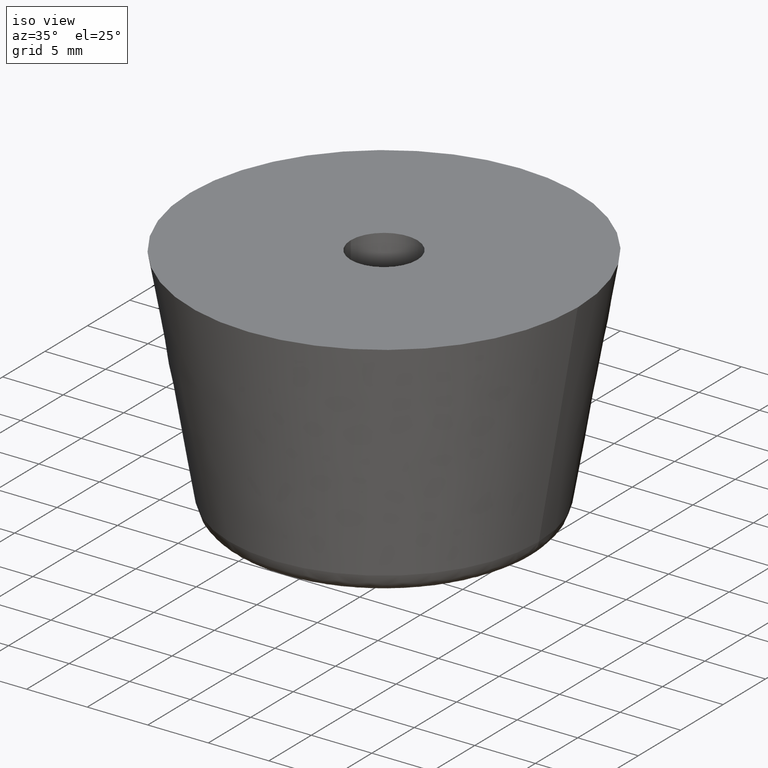
[diagram: clean part render]
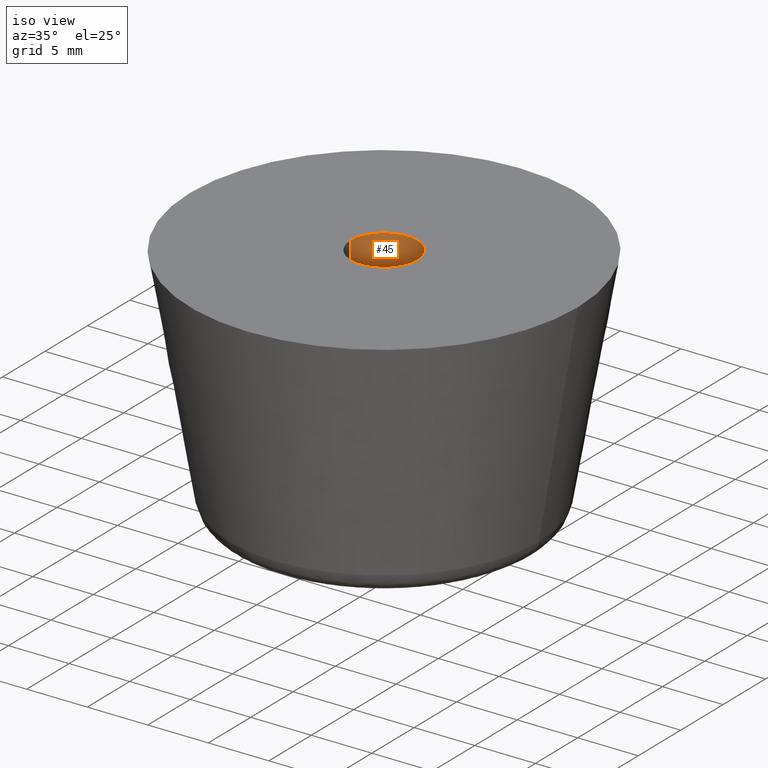
[diagram: same view with one face highlighted and labeled with its STEP entity id]
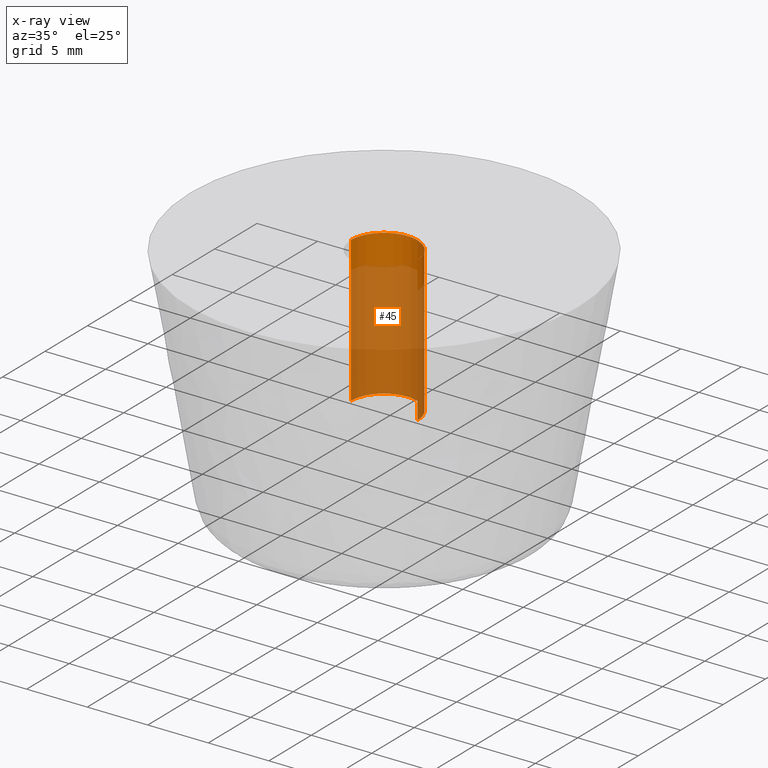
[diagram: x-ray of the same camera — body ghosted, the highlighted face saturated]
A machine part, iso view. The second image highlights one B-rep face of the part: STEP entity #45.
The next image is the same camera in x-ray: the body ghosted, the highlighted face saturated — about 80% of this face is hidden behind the body in this view.
In plain terms, the highlighted cylindrical surface (partial cylindrical patch) has radius 2.75 mm, axis along (0, -0, 1).
Its self-contained STEP definition (entity closure, byte-faithful):
#45=ADVANCED_FACE('',(#105),#104,.F.);
#104=CYLINDRICAL_SURFACE('',#207,2.75000000000E+00);
#105=FACE_OUTER_BOUND('',#208,.T.);
#204=CARTESIAN_POINT('',(-3.55271367880E-14,0.00000000000E+00,0.00000000000E+00));
#205=DIRECTION('',(0.00000000000E+00,-0.00000000000E+00,1.00000000000E+00));
#206=DIRECTION('',(1.00000000000E+00,-0.00000000000E+00,-0.00000000000E+00));
#207=AXIS2_PLACEMENT_3D('',#204,#205,#206);
#208=EDGE_LOOP('',(#296,#297,#298,#299));
#296=ORIENTED_EDGE('',*,*,#327,.T.);
#297=ORIENTED_EDGE('',*,*,#336,.T.);
#298=ORIENTED_EDGE('',*,*,#322,.F.);
#299=ORIENTED_EDGE('',*,*,#337,.F.);
#322=EDGE_CURVE('',#356,#357,#358,.T.);
#327=EDGE_CURVE('',#385,#384,#392,.T.);
#336=EDGE_CURVE('',#384,#357,#452,.T.);
#337=EDGE_CURVE('',#385,#356,#458,.T.);
#356=VERTEX_POINT('',#498);
#357=VERTEX_POINT('',#499);
#358=CIRCLE('',#503,2.75000000000E+00);
#384=VERTEX_POINT('',#518);
#385=VERTEX_POINT('',#519);
#392=CIRCLE('',#527,2.75000000000E+00);
#452=(BOUNDED_CURVE() B_SPLINE_CURVE(1,(#562,#563),.UNSPECIFIED.,.F.,.F.) B_SPLINE_CURVE_WITH_KNOTS((2,2),(8.33333343261E-02,9.16666667006E-01),.UNSPECIFIED.) CURVE() GEOMETRIC_REPRESENTATION_ITEM() RATIONAL_B_SPLINE_CURVE((1.00000000000E+00,1.00000000000E+00)) REPRESENTATION_ITEM('') );
#458=(BOUNDED_CURVE() B_SPLINE_CURVE(1,(#564,#565),.UNSPECIFIED.,.F.,.F.) B_SPLINE_CURVE_WITH_KNOTS((2,2),(8.33333333333E-02,9.16666666667E-01),.UNSPECIFIED.) CURVE() GEOMETRIC_REPRESENTATION_ITEM() RATIONAL_B_SPLINE_CURVE((7.50000000000E-01,7.50000000000E-01)) REPRESENTATION_ITEM('') );
#498=CARTESIAN_POINT('',(-2.75000000000E+00,0.00000000000E+00,0.00000000000E+00));
#499=CARTESIAN_POINT('',(2.75000000000E+00,1.48029736617E-16,0.00000000000E+00));
#500=CARTESIAN_POINT('',(-3.55271367880E-14,0.00000000000E+00,0.00000000000E+00));
#501=DIRECTION('',(-0.00000000000E+00,0.00000000000E+00,-1.00000000000E+00));
#502=DIRECTION('',(-1.00000000000E+00,-1.22460635382E-16,0.00000000000E+00));
#503=AXIS2_PLACEMENT_3D('',#500,#501,#502);
#518=CARTESIAN_POINT('',(2.75000000000E+00,1.48029736617E-16,-1.20000000000E+01));
#519=CARTESIAN_POINT('',(-2.75000000000E+00,0.00000000000E+00,-1.20000000000E+01));
#524=CARTESIAN_POINT('',(-3.55271367880E-14,0.00000000000E+00,-1.20000000000E+01));
#525=DIRECTION('',(-0.00000000000E+00,0.00000000000E+00,-1.00000000000E+00));
#526=DIRECTION('',(-1.00000000000E+00,-1.22460635382E-16,0.00000000000E+00));
#527=AXIS2_PLACEMENT_3D('',#524,#525,#526);
#562=CARTESIAN_POINT('',(2.75000000000E+00,0.00000000000E+00,-1.19999999857E+01));
#563=CARTESIAN_POINT('',(2.75000000000E+00,0.00000000000E+00,4.88765605766E-09));
#564=CARTESIAN_POINT('',(-2.75000000000E+00,0.00000000000E+00,-1.20000000000E+01));
#565=CARTESIAN_POINT('',(-2.75000000000E+00,0.00000000000E+00,4.44089209850E-16));